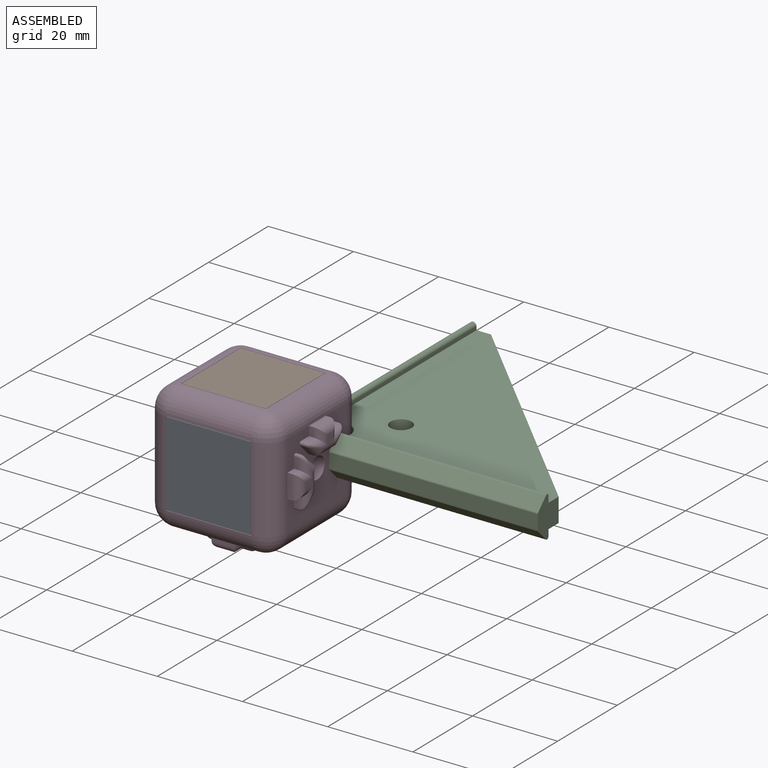
[diagram: assembled view]
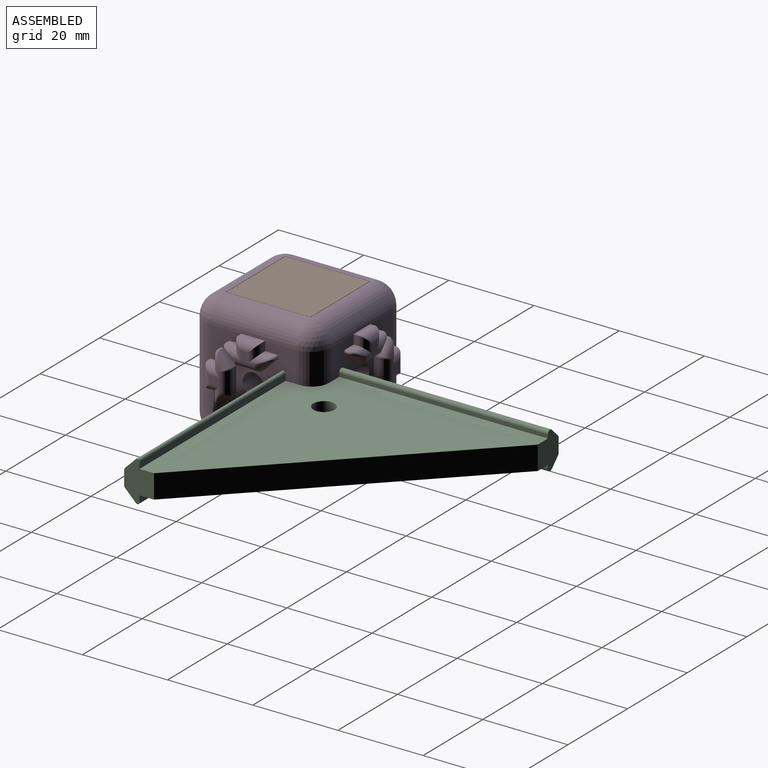
[diagram: assembled view, second angle]
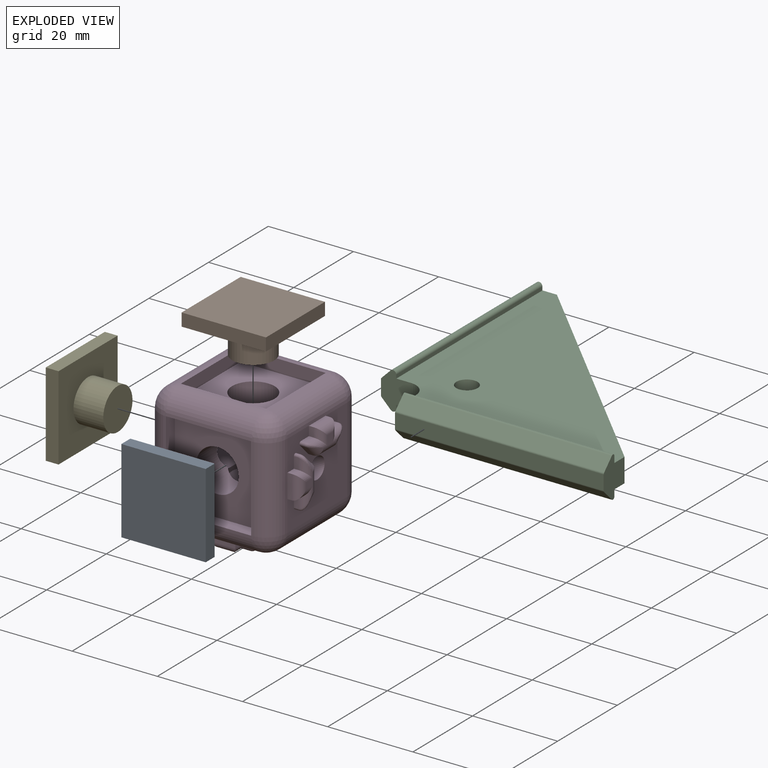
[diagram: exploded view]
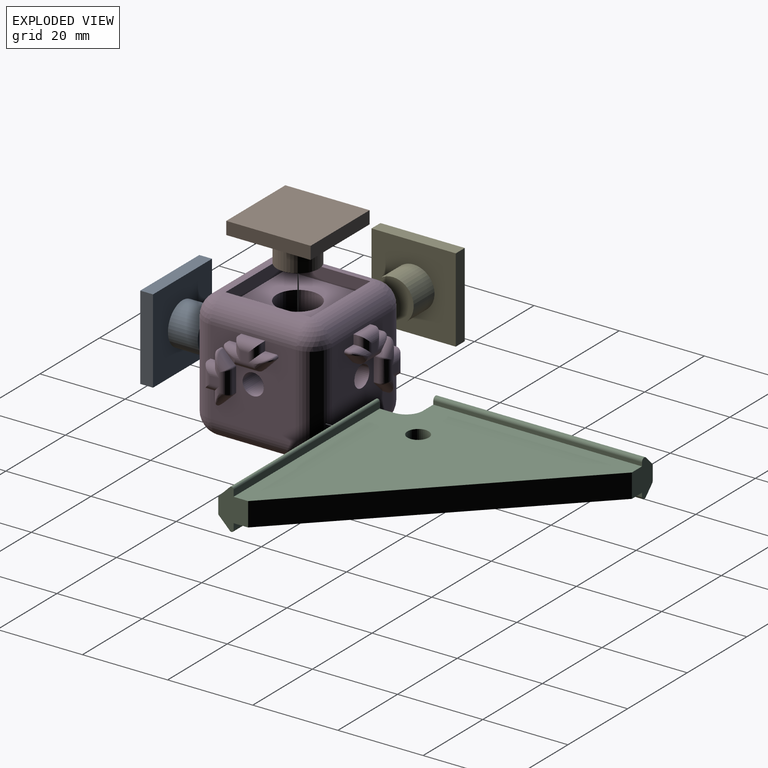
[diagram: exploded view, second angle]
ASSEMBLY  parts=5 mates=4
PART A: 8 faces, bbox 19.8x10x19.8 mm
  f0: plane 19.8x3mm, normal (0,0,-1), area 59.4mm2, adj f1,f3,f4,f5
  f1: plane 19.8x3mm, normal (-1,0,0), area 59.4mm2, adj f0,f2,f4,f5
  f2: plane 19.8x3mm, normal (0,0,1), area 59.4mm2, adj f1,f3,f4,f5
  f3: plane 19.8x3mm, normal (1,0,0), area 59.4mm2, adj f0,f2,f4,f5
  f4: plane 19.8x19.8mm, normal (0,1,0), area 392mm2, adj f0,f1,f2,f3
  f5: plane 19.8x19.8mm, normal (0,-1,0), area 316.6mm2, adj f0,f1,f2,f3,f6
  f6: cylinder r=4.9mm len=9.8mm, axis (0,1,0), area 215.5mm2, adj f5,f7
  f7: plane 9.8x9.8mm, normal (0,-1,0), area 75.4mm2, adj f6
PART B: same geometry as A
PART C: 27 faces, bbox 60x60x9.6 mm
  f0: cylinder r=0.5mm len=49mm, axis (0,1,0), area 57.7mm2, adj f1,f5,f6,f7
  f1: plane 49x2.6mm, normal (-0.71,0,0.71), area 180.2mm2, adj f0,f2,f6,f7
  f2: cylinder r=0.5mm len=49mm, axis (0,1,0), area 19.2mm2, adj f1,f3,f6,f7
  f3: plane 49x3.4mm, normal (-1,0,0), area 166.6mm2, adj f2,f6,f7,f20
  f4: plane 56.4x56.4mm, normal (0,0,1), area 1705.5mm2, adj f5,f6,f7,f12,f13,f14,f15,f16
  f5: plane 49x1.5mm, normal (1,0,0), area 73.5mm2, adj f0,f4,f6,f7
  f6: plane 9.6x7mm, normal (0,-1,0), area 45.1mm2, adj f0,f1,f2,f3,f4,f5,f16,f18
  f7: plane 9.6x7mm, normal (0,1,0), area 45.1mm2, adj f0,f1,f2,f3,f4,f5,f15,f18
  f8: plane 49x3.4mm, normal (0,1,0), area 166.6mm2, adj f9,f13,f14,f23
  f9: cylinder r=0.5mm len=49mm, axis (-1,0,0), area 19.2mm2, adj f8,f10,f13,f14
  f10: plane 49x2.12mm, normal (0,0.71,0.71), area 147.1mm2, adj f9,f11,f13,f14
  f11: cylinder r=0.78mm len=49mm, axis (-1,0,0), area 89.7mm2, adj f10,f12,f13,f14
  f12: plane 49x0.83mm, normal (0,-1,0), area 40.7mm2, adj f4,f11,f13,f14
  f13: plane 8.81x7mm, normal (1,0,0), area 44.2mm2, adj f4,f8,f9,f10,f11,f12,f16,f21
  f14: plane 8.81x7mm, normal (-1,0,0), area 44.2mm2, adj f4,f8,f9,f10,f11,f12,f15,f21
  f15: cylinder r=4mm len=5.6mm, axis (0,0,-1), area 35.2mm2, adj f4,f7,f14,f21
  f16: plane 53x53mm, normal (0.71,-0.71,0), area 419.7mm2, adj f4,f6,f13,f21
  f17: cylinder r=2.5mm len=5.6mm, axis (0,0,-1), area 88mm2, adj f4,f21
  f18: cylinder r=0.5mm len=49mm, axis (0,1,0), area 57.7mm2, adj f6,f7,f19,f22
  f19: plane 49x2.6mm, normal (-0.71,0,-0.71), area 180.2mm2, adj f6,f7,f18,f20
  f20: cylinder r=0.5mm len=49mm, axis (0,1,0), area 19.2mm2, adj f3,f6,f7,f19
  f21: plane 56.4x56.4mm, normal (0,0,-1), area 1705.5mm2, adj f6,f7,f13,f14,f15,f16,f17,f22
  f22: plane 49x1.5mm, normal (1,0,0), area 73.5mm2, adj f6,f7,f18,f21
  f23: cylinder r=0.5mm len=49mm, axis (-1,0,0), area 19.2mm2, adj f8,f13,f14,f24
  f24: plane 49x2.12mm, normal (0,0.71,-0.71), area 147.1mm2, adj f13,f14,f23,f25
  f25: cylinder r=0.78mm len=49mm, axis (-1,0,0), area 89.7mm2, adj f13,f14,f24,f26
  f26: plane 49x0.83mm, normal (0,-1,0), area 40.7mm2, adj f13,f14,f21,f25
PART D: 192 faces, bbox 33x33x33 mm
  f0: cylinder r=2.5mm len=6.5mm, axis (0,-1,0), area 102.1mm2, adj f2,f126
  f1: cylinder r=5mm len=10mm, axis (0,0,-1), area 235.6mm2, adj f124,f125,f174,f175,f191
  f2: plane 20x20mm, normal (0,-1,0), area 284.7mm2, adj f0,f14,f19,f22,f25,f78,f80,f81
  f3: cylinder r=2.5mm len=6.5mm, axis (0,0,1), area 102.1mm2, adj f4,f77
  f4: plane 20x20mm, normal (0,0,1), area 285.5mm2, adj f3,f9,f10,f19,f20,f27,f28,f29
  f5: plane 20x20mm, normal (1,0,0), area 284.7mm2, adj f11,f20,f21,f25,f127,f129,f130,f131
  f6: cylinder r=5mm len=20mm, axis (0,0,1), area 157.1mm2, adj f7,f8,f179,f182
  f7: sphere r=5mm, area 39.3mm2, adj f6,f9,f10
  f8: sphere r=5mm, area 39.3mm2, adj f6,f12,f13
  f9: cylinder r=5mm len=20mm, axis (0,1,0), area 157.1mm2, adj f4,f7,f15,f35,f185
  f10: cylinder r=5mm len=20mm, axis (1,0,0), area 157.1mm2, adj f4,f7,f16,f26,f180
  f11: cylinder r=5mm len=20mm, axis (0,0,-1), area 157.1mm2, adj f5,f16,f17,f137,f177
  f12: cylinder r=5mm len=20mm, axis (-1,0,0), area 157.1mm2, adj f8,f17,f178,f188
  f13: cylinder r=5mm len=20mm, axis (0,-1,0), area 157.1mm2, adj f8,f18,f183,f187
  f14: cylinder r=5mm len=20mm, axis (0,0,-1), area 157.1mm2, adj f2,f15,f18,f87,f184
  f15: sphere r=5mm, area 39.3mm2, adj f9,f14,f19
  f16: sphere r=5mm, area 39.3mm2, adj f10,f11,f20
  f17: sphere r=5mm, area 39.3mm2, adj f11,f12,f21
  f18: sphere r=5mm, area 39.3mm2, adj f13,f14,f22
  f19: cylinder r=5mm len=20mm, axis (-1,0,0), area 157.1mm2, adj f2,f4,f15,f23
  f20: cylinder r=5mm len=20mm, axis (0,-1,0), area 157.1mm2, adj f4,f5,f16,f23
  f21: cylinder r=5mm len=20mm, axis (0,1,0), area 157.1mm2, adj f5,f17,f24,f128,f189
  f22: cylinder r=5mm len=20mm, axis (1,0,0), area 157.1mm2, adj f2,f18,f24,f79,f190
  f23: sphere r=5mm, area 39.3mm2, adj f19,f20,f25
  f24: sphere r=5mm, area 39.3mm2, adj f21,f22,f25
  f25: cylinder r=5mm len=20mm, axis (0,0,1), area 157.1mm2, adj f2,f5,f23,f24
  f26: plane 5.6x1.5mm, normal (0,1,0), area 8.4mm2, adj f10,f27,f33,f69
  f27: plane 2.2x1.5mm, normal (-1,0,0), area 3.3mm2, adj f4,f26,f28,f71
  f28: plane 2.59x1.5mm, normal (0,1,0), area 3.9mm2, adj f4,f27,f44,f73
  f29: plane 2.8x2.8mm, normal (-0.71,-0.71,0), area 5.9mm2, adj f4,f44,f45,f74
  f30: plane 5.19x1.5mm, normal (0,-1,0), area 7.8mm2, adj f4,f45,f46,f70
  f31: plane 2.8x2.8mm, normal (0.71,-0.71,0), area 5.9mm2, adj f4,f46,f47,f66
  f32: plane 2.59x1.5mm, normal (0,1,0), area 3.9mm2, adj f4,f33,f47,f65
  f33: plane 2.2x1.5mm, normal (1,0,0), area 3.3mm2, adj f4,f26,f32,f67
  f34: plane 5.96x3mm, normal (0,0,1), area 9.8mm2, adj f65,f66,f67,f69,f70,f71,f73,f74
  f35: plane 5.6x1.5mm, normal (-1,0,0), area 8.4mm2, adj f9,f36,f42,f58
  f36: plane 2.2x1.5mm, normal (0,-1,0), area 3.3mm2, adj f4,f35,f37,f56
  f37: plane 2.59x1.5mm, normal (-1,0,0), area 3.9mm2, adj f4,f36,f51,f54
  f38: plane 2.8x2.8mm, normal (0.71,-0.71,0), area 5.9mm2, adj f4,f50,f51,f53
  f39: plane 5.19x1.5mm, normal (1,0,0), area 7.8mm2, adj f4,f49,f50,f57
  f40: plane 2.8x2.8mm, normal (0.71,0.71,0), area 5.9mm2, adj f4,f48,f49,f61
  f41: plane 2.59x1.5mm, normal (-1,0,0), area 3.9mm2, adj f4,f42,f48,f62
  f42: plane 2.2x1.5mm, normal (0,1,0), area 3.3mm2, adj f4,f35,f41,f60
  f43: plane 5.96x3mm, normal (0,0,1), area 9.8mm2, adj f53,f54,f56,f57,f58,f60,f61,f62
  f44: cylinder r=0.5mm len=1.5mm, axis (0,0,-1), area 1.8mm2, adj f4,f28,f29,f75
  f45: cylinder r=0.5mm len=1.5mm, axis (0,0,-1), area 0.6mm2, adj f4,f29,f30,f72
  f46: cylinder r=0.5mm len=1.5mm, axis (0,0,1), area 0.6mm2, adj f4,f30,f31,f68
  f47: cylinder r=0.5mm len=1.5mm, axis (0,0,-1), area 1.8mm2, adj f4,f31,f32,f64
  f48: cylinder r=0.5mm len=1.5mm, axis (0,0,-1), area 1.8mm2, adj f4,f40,f41,f63
  f49: cylinder r=0.5mm len=1.5mm, axis (0,0,1), area 0.6mm2, adj f4,f39,f40,f59
  f50: cylinder r=0.5mm len=1.5mm, axis (0,0,-1), area 0.6mm2, adj f4,f38,f39,f55
  f51: cylinder r=0.5mm len=1.5mm, axis (0,0,-1), area 1.8mm2, adj f4,f37,f38,f52
  f52: bspline ~3.62x2.05mm, area 2.3mm2, adj f51,f53,f54
  f53: cylinder r=1.5mm len=3.86mm, axis (-0.71,-0.71,0), area 6.9mm2, adj f38,f43,f52,f55
  f54: cylinder r=1.5mm len=4.09mm, axis (0,1,0), area 5.3mm2, adj f37,f43,f52,f56
  f55: bspline ~1.71x1.5mm, area 0.6mm2, adj f50,f53,f57
  f56: cylinder r=1.5mm len=3.7mm, axis (-1,0,0), area 5.2mm2, adj f36,f43,f54,f58
  f57: cylinder r=1.5mm len=5.19mm, axis (0,-1,0), area 11.5mm2, adj f39,f43,f55,f59
  f58: cylinder r=1.5mm len=5.6mm, axis (0,1,0), area 10.6mm2, adj f35,f43,f56,f60
  f59: bspline ~1.71x1.5mm, area 0.6mm2, adj f49,f57,f61
  f60: cylinder r=1.5mm len=3.7mm, axis (1,0,0), area 5.2mm2, adj f42,f43,f58,f62
  f61: cylinder r=1.5mm len=3.86mm, axis (0.71,-0.71,0), area 6.9mm2, adj f40,f43,f59,f63
  f62: cylinder r=1.5mm len=4.09mm, axis (0,1,0), area 5.3mm2, adj f41,f43,f60,f63
  f63: bspline ~3.62x2.05mm, area 2.3mm2, adj f48,f61,f62
  f64: bspline ~3.62x2.05mm, area 2.3mm2, adj f47,f65,f66
  f65: cylinder r=1.5mm len=4.09mm, axis (1,0,0), area 5.3mm2, adj f32,f34,f64,f67
  f66: cylinder r=1.5mm len=3.86mm, axis (-0.71,-0.71,0), area 6.9mm2, adj f31,f34,f64,f68
  f67: cylinder r=1.5mm len=3.7mm, axis (0,-1,0), area 5.2mm2, adj f33,f34,f65,f69
  f68: bspline ~1.71x1.5mm, area 0.6mm2, adj f46,f66,f70
  f69: cylinder r=1.5mm len=5.6mm, axis (1,0,0), area 10.6mm2, adj f26,f34,f67,f71
  f70: cylinder r=1.5mm len=5.19mm, axis (-1,0,0), area 11.5mm2, adj f30,f34,f68,f72
  f71: cylinder r=1.5mm len=3.7mm, axis (0,1,0), area 5.2mm2, adj f27,f34,f69,f73
  f72: bspline ~1.71x1.5mm, area 0.6mm2, adj f45,f70,f74
  f73: cylinder r=1.5mm len=4.09mm, axis (1,0,0), area 5.3mm2, adj f28,f34,f71,f75
  f74: cylinder r=1.5mm len=3.86mm, axis (-0.71,0.71,0), area 6.9mm2, adj f29,f34,f72,f75
  f75: bspline ~3.62x2.05mm, area 2.3mm2, adj f44,f73,f74
  f76: cylinder r=5mm len=10mm, axis (0,0,-1), area 47.1mm2, adj f77,f124,f125,f174,f175
  f77: cone r=5mm half-angle=45deg, axis (0,0,-1), area 83.3mm2, adj f3,f76
  f78: plane 2.2x1.1mm, normal (-1,0,0), area 2.4mm2, adj f2,f79,f85,f114
  f79: plane 5.6x1.1mm, normal (0,0,-1), area 6.2mm2, adj f22,f78,f80,f117
  f80: plane 2.2x1.1mm, normal (1,0,0), area 2.4mm2, adj f2,f79,f81,f120
  f81: plane 2.62x1.1mm, normal (0,0,-1), area 2.9mm2, adj f2,f80,f96,f118
  f82: plane 2.8x2.73mm, normal (0.72,0,0.7), area 4.3mm2, adj f2,f96,f97,f122
  f83: plane 5.38x1.1mm, normal (0,0,1), area 5.9mm2, adj f2,f97,f98,f118
  f84: plane 2.8x2.73mm, normal (-0.72,0,0.7), area 4.3mm2, adj f2,f98,f99,f116
  f85: plane 2.62x1.1mm, normal (0,0,-1), area 2.9mm2, adj f2,f78,f99,f118
  f86: plane 2.2x1.8mm, normal (0,-1,0), area 4mm2, adj f114,f117,f118,f120
  f87: plane 5.6x1.1mm, normal (-1,0,0), area 6.2mm2, adj f14,f88,f94,f109
  f88: plane 2.2x1.1mm, normal (0,0,-1), area 2.4mm2, adj f2,f87,f89,f106
  f89: plane 2.62x1.1mm, normal (-1,0,0), area 2.9mm2, adj f2,f88,f103,f108
  f90: plane 2.8x2.73mm, normal (0.7,0,-0.72), area 4.3mm2, adj f2,f102,f103,f104
  f91: plane 5.38x1.1mm, normal (1,0,0), area 5.9mm2, adj f2,f101,f102,f108
  f92: plane 2.8x2.73mm, normal (0.7,0,0.72), area 4.3mm2, adj f2,f100,f101,f112
  f93: plane 2.62x1.1mm, normal (-1,0,0), area 2.9mm2, adj f2,f94,f100,f108
  f94: plane 2.2x1.1mm, normal (0,0,1), area 2.4mm2, adj f2,f87,f93,f111
  f95: plane 2.2x1.8mm, normal (0,-1,0), area 4mm2, adj f106,f108,f109,f111
  f96: cylinder r=0.5mm len=1.1mm, axis (0,1,0), area 1.3mm2, adj f2,f81,f82,f123
  f97: cylinder r=0.5mm len=1.1mm, axis (0,1,0), area 0.4mm2, adj f2,f82,f83,f121
  f98: cylinder r=0.5mm len=1.1mm, axis (0,-1,0), area 0.4mm2, adj f2,f83,f84,f119
  f99: cylinder r=0.5mm len=1.1mm, axis (0,1,0), area 1.3mm2, adj f2,f84,f85,f115
  f100: cylinder r=0.5mm len=1.1mm, axis (0,1,0), area 1.3mm2, adj f2,f92,f93,f113
  f101: cylinder r=0.5mm len=1.1mm, axis (0,-1,0), area 0.4mm2, adj f2,f91,f92,f110
  f102: cylinder r=0.5mm len=1.1mm, axis (0,1,0), area 0.4mm2, adj f2,f90,f91,f107
  f103: cylinder r=0.5mm len=1.1mm, axis (0,1,0), area 1.3mm2, adj f2,f89,f90,f105
  f104: cylinder r=1.9mm len=4.13mm, axis (-0.72,0,-0.7), area 7.4mm2, adj f90,f105,f107
  f105: bspline ~4.5x2.49mm, area 2.9mm2, adj f103,f104,f108
  f106: cylinder r=1.9mm len=4.1mm, axis (-1,0,0), area 6.6mm2, adj f88,f95,f108,f109
  f107: bspline ~2.16x1.9mm, area 0.8mm2, adj f102,f104,f108
  f108: cylinder r=1.9mm len=10.83mm, axis (0,0,1), area 27.3mm2, adj f89,f91,f93,f95,f105,f106,f107,f110
  f109: cylinder r=1.9mm len=5.6mm, axis (0,0,1), area 12.6mm2, adj f87,f95,f106,f111
  f110: bspline ~2.16x1.9mm, area 0.8mm2, adj f101,f108,f112
  f111: cylinder r=1.9mm len=4.1mm, axis (1,0,0), area 6.6mm2, adj f94,f95,f108,f109
  f112: cylinder r=1.9mm len=4.13mm, axis (0.72,0,-0.7), area 7.4mm2, adj f92,f110,f113
  f113: bspline ~4.5x2.49mm, area 2.9mm2, adj f100,f108,f112
  f114: cylinder r=1.9mm len=4.1mm, axis (0,0,1), area 6.6mm2, adj f78,f86,f117,f118
  f115: bspline ~4.5x2.49mm, area 2.9mm2, adj f99,f116,f118
  f116: cylinder r=1.9mm len=4.13mm, axis (0.7,0,0.72), area 7.4mm2, adj f84,f115,f119
  f117: cylinder r=1.9mm len=5.6mm, axis (-1,0,0), area 12.6mm2, adj f79,f86,f114,f120
  f118: cylinder r=1.9mm len=10.83mm, axis (-1,0,0), area 27.3mm2, adj f81,f83,f85,f86,f114,f115,f119,f120
  f119: bspline ~2.16x1.9mm, area 0.8mm2, adj f98,f116,f118
  f120: cylinder r=1.9mm len=4.1mm, axis (0,0,-1), area 6.6mm2, adj f80,f86,f117,f118
  f121: bspline ~2.16x1.9mm, area 0.8mm2, adj f97,f118,f122
  f122: cylinder r=1.9mm len=4.13mm, axis (0.7,0,-0.72), area 7.4mm2, adj f82,f121,f123
  f123: bspline ~4.5x2.49mm, area 2.9mm2, adj f96,f118,f122
  f124: cylinder r=5mm len=10mm, axis (0,1,0), area 235.6mm2, adj f1,f76,f174,f175,f181
  f125: cylinder r=5mm len=10mm, axis (0,1,0), area 47.1mm2, adj f1,f76,f126,f174,f175
  f126: cone r=5mm half-angle=45deg, axis (0,1,0), area 83.3mm2, adj f0,f125
  f127: plane 2.2x1.1mm, normal (0,-1,0), area 2.4mm2, adj f5,f128,f134,f160
  f128: plane 5.6x1.1mm, normal (0,0,-1), area 6.2mm2, adj f21,f127,f129,f158
  f129: plane 2.2x1.1mm, normal (0,1,0), area 2.4mm2, adj f5,f128,f130,f155
  f130: plane 2.62x1.1mm, normal (0,0,-1), area 2.9mm2, adj f5,f129,f152,f157
  f131: plane 2.8x2.73mm, normal (0,0.72,0.7), area 4.3mm2, adj f5,f151,f152,f153
  f132: plane 5.38x1.1mm, normal (0,0,1), area 5.9mm2, adj f5,f150,f151,f157
  f133: plane 2.8x2.73mm, normal (0,-0.72,0.7), area 4.3mm2, adj f5,f149,f150,f161
  f134: plane 2.62x1.1mm, normal (0,0,-1), area 2.9mm2, adj f5,f127,f149,f157
  f135: plane 2.2x1.8mm, normal (1,0,0), area 4mm2, adj f155,f157,f158,f160
  f136: plane 2.2x1.1mm, normal (0,0,-1), area 2.4mm2, adj f5,f137,f143,f163
  f137: plane 5.6x1.1mm, normal (0,1,0), area 6.2mm2, adj f11,f136,f138,f166
  f138: plane 2.2x1.1mm, normal (0,0,1), area 2.4mm2, adj f5,f137,f139,f169
  f139: plane 2.62x1.1mm, normal (0,1,0), area 2.9mm2, adj f5,f138,f145,f167
  f140: plane 2.8x2.73mm, normal (0,-0.7,0.72), area 4.3mm2, adj f5,f145,f146,f171
  f141: plane 5.38x1.1mm, normal (0,-1,0), area 5.9mm2, adj f5,f146,f147,f167
  f142: plane 2.8x2.73mm, normal (0,-0.7,-0.72), area 4.3mm2, adj f5,f147,f148,f165
  f143: plane 2.62x1.1mm, normal (0,1,0), area 2.9mm2, adj f5,f136,f148,f167
  f144: plane 2.2x1.8mm, normal (1,0,0), area 4mm2, adj f163,f166,f167,f169
  f145: cylinder r=0.5mm len=1.1mm, axis (-1,0,0), area 1.3mm2, adj f5,f139,f140,f172
  f146: cylinder r=0.5mm len=1.1mm, axis (-1,0,0), area 0.4mm2, adj f5,f140,f141,f170
  f147: cylinder r=0.5mm len=1.1mm, axis (1,0,0), area 0.4mm2, adj f5,f141,f142,f168
  f148: cylinder r=0.5mm len=1.1mm, axis (-1,0,0), area 1.3mm2, adj f5,f142,f143,f164
  f149: cylinder r=0.5mm len=1.1mm, axis (-1,0,0), area 1.3mm2, adj f5,f133,f134,f162
  f150: cylinder r=0.5mm len=1.1mm, axis (1,0,0), area 0.4mm2, adj f5,f132,f133,f159
  f151: cylinder r=0.5mm len=1.1mm, axis (-1,0,0), area 0.4mm2, adj f5,f131,f132,f156
  f152: cylinder r=0.5mm len=1.1mm, axis (-1,0,0), area 1.3mm2, adj f5,f130,f131,f154
  f153: cylinder r=1.9mm len=4.13mm, axis (0,0.7,-0.72), area 7.4mm2, adj f131,f154,f156
  f154: bspline ~4.5x2.49mm, area 2.9mm2, adj f152,f153,f157
  f155: cylinder r=1.9mm len=4.1mm, axis (0,0,-1), area 6.6mm2, adj f129,f135,f157,f158
  f156: bspline ~2.16x1.9mm, area 0.8mm2, adj f151,f153,f157
  f157: cylinder r=1.9mm len=10.83mm, axis (0,-1,0), area 27.3mm2, adj f130,f132,f134,f135,f154,f155,f156,f159
  f158: cylinder r=1.9mm len=5.6mm, axis (0,-1,0), area 12.6mm2, adj f128,f135,f155,f160
  f159: bspline ~2.16x1.9mm, area 0.8mm2, adj f150,f157,f161
  f160: cylinder r=1.9mm len=4.1mm, axis (0,0,1), area 6.6mm2, adj f127,f135,f157,f158
  f161: cylinder r=1.9mm len=4.13mm, axis (0,0.7,0.72), area 7.4mm2, adj f133,f159,f162
  f162: bspline ~4.5x2.49mm, area 2.9mm2, adj f149,f157,f161
  f163: cylinder r=1.9mm len=4.1mm, axis (0,-1,0), area 6.6mm2, adj f136,f144,f166,f167
  f164: bspline ~4.5x2.49mm, area 2.9mm2, adj f148,f165,f167
  f165: cylinder r=1.9mm len=4.13mm, axis (0,-0.72,0.7), area 7.4mm2, adj f142,f164,f168
  f166: cylinder r=1.9mm len=5.6mm, axis (0,0,-1), area 12.6mm2, adj f137,f144,f163,f169
  f167: cylinder r=1.9mm len=10.83mm, axis (0,0,-1), area 27.3mm2, adj f139,f141,f143,f144,f163,f164,f168,f169
  f168: bspline ~2.16x1.9mm, area 0.8mm2, adj f147,f165,f167
  f169: cylinder r=1.9mm len=4.1mm, axis (0,1,0), area 6.6mm2, adj f138,f144,f166,f167
  f170: bspline ~2.16x1.9mm, area 0.8mm2, adj f146,f167,f171
  f171: cylinder r=1.9mm len=4.13mm, axis (0,0.72,0.7), area 7.4mm2, adj f140,f170,f172
  f172: bspline ~4.5x2.49mm, area 2.9mm2, adj f145,f167,f171
  f173: cylinder r=2.5mm len=6.5mm, axis (1,0,0), area 102.1mm2, adj f5,f176
  f174: cylinder r=5mm len=10mm, axis (-1,0,0), area 47.1mm2, adj f1,f76,f124,f125,f176
  f175: cylinder r=5mm len=10mm, axis (-1,0,0), area 235.6mm2, adj f1,f76,f124,f125,f186
  f176: cone r=2.5mm half-angle=45deg, axis (-1,0,0), area 83.3mm2, adj f173,f174
  f177: plane 20x3mm, normal (-1,0,0), area 60mm2, adj f11,f178,f180,f181
  f178: plane 20x3mm, normal (0,0,1), area 60mm2, adj f12,f177,f179,f181
  f179: plane 20x3mm, normal (1,0,0), area 60mm2, adj f6,f178,f180,f181
  f180: plane 20x3mm, normal (0,0,-1), area 60mm2, adj f10,f177,f179,f181
  f181: plane 20x20mm, normal (0,1,0), area 321.5mm2, adj f124,f177,f178,f179,f180
  f182: plane 20x3mm, normal (0,-1,0), area 60mm2, adj f6,f183,f185,f186
  f183: plane 20x3mm, normal (0,0,1), area 60mm2, adj f13,f182,f184,f186
  f184: plane 20x3mm, normal (0,1,0), area 60mm2, adj f14,f183,f185,f186
  f185: plane 20x3mm, normal (0,0,-1), area 60mm2, adj f9,f182,f184,f186
  f186: plane 20x20mm, normal (-1,0,0), area 321.5mm2, adj f175,f182,f183,f184,f185
  f187: plane 20x3mm, normal (1,0,0), area 60mm2, adj f13,f188,f190,f191
  f188: plane 20x3mm, normal (0,-1,0), area 60mm2, adj f12,f187,f189,f191
  f189: plane 20x3mm, normal (-1,0,0), area 60mm2, adj f21,f188,f190,f191
  f190: plane 20x3mm, normal (0,1,0), area 60mm2, adj f22,f187,f189,f191
  f191: plane 20x20mm, normal (0,0,-1), area 321.5mm2, adj f1,f187,f188,f189,f190
PART E: same geometry as A
PLACE A rot(axis=(1,0,0),180deg) t=(0.07,0.65,0.1)mm
PLACE B rot(axis=(1,0,0),90deg) t=(0.07,0.65,0.1)mm
PLACE C rot(axis=(0,0,1),90deg) t=(-0.13,0.45,0.1)mm
PLACE D rot(axis=(1,0,0),180deg) t=(0.07,0.65,0.1)mm
PLACE E rot(axis=(-0.58,0.58,0.58),120deg) t=(0.07,0.65,0.1)mm
MATE fastened C.f14 <-> D.f2  axis (0,-1,0) through (7.51,15.65,0.1)mm
MATE fastened E.f6 <-> D.f173  axis (1,0,0) through (-11.93,0.65,0.1)mm
MATE fastened B.f6 <-> D.f1  axis (0,0,-1) through (0.07,0.65,12.1)mm
MATE fastened A.f6 <-> D.f124  axis (0,1,0) through (0.07,-11.35,0.1)mm
